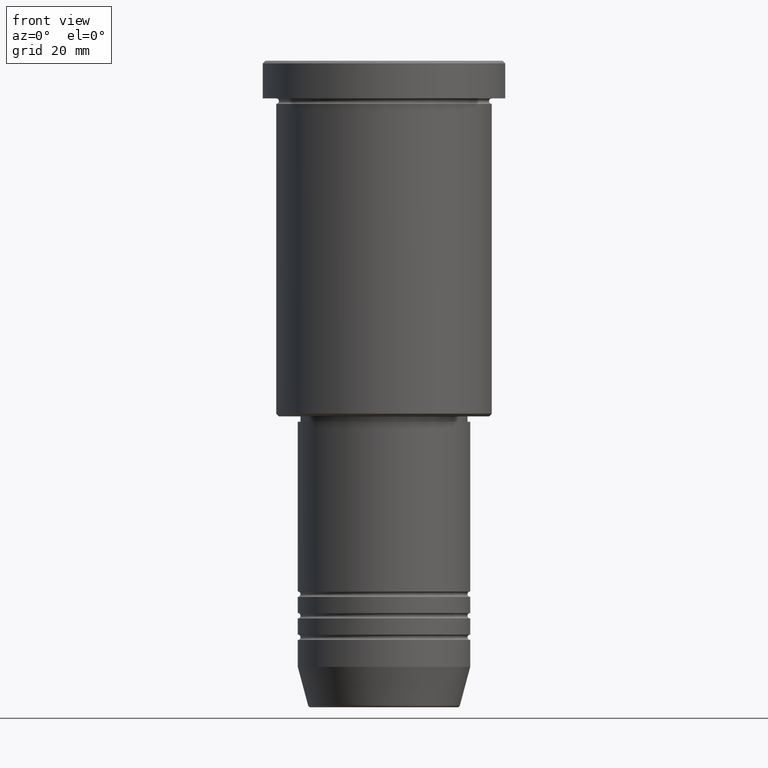
[diagram: clean part render]
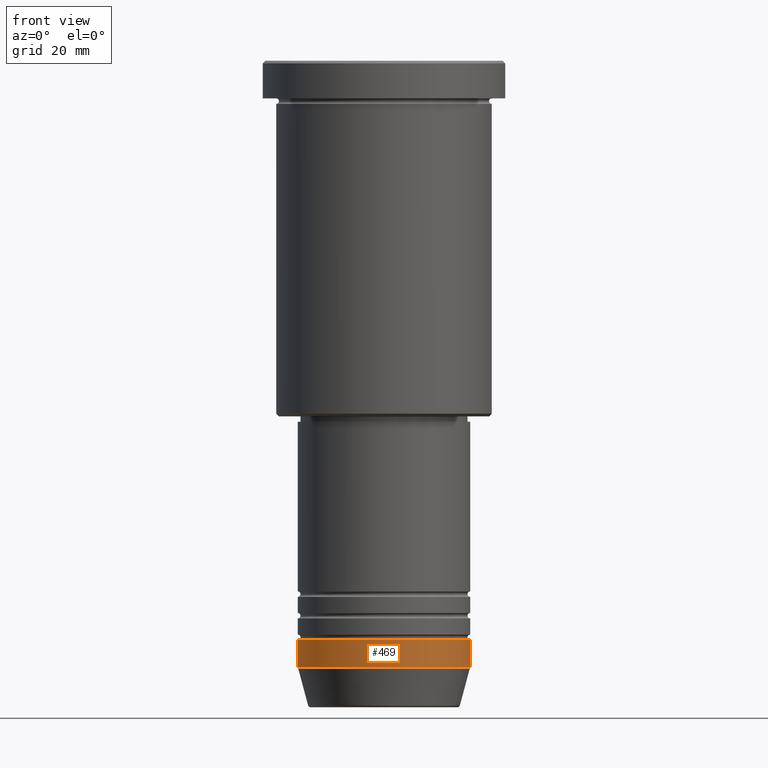
[diagram: same view with one face highlighted and labeled with its STEP entity id]
A machine part, front view. The second image highlights one B-rep face of the part: STEP entity #469.
In plain terms, the highlighted cylindrical surface (partial cylindrical patch) has radius 16 mm, axis along (-0, -0, 1).
Its self-contained STEP definition (entity closure, byte-faithful):
#18 = EDGE_CURVE ( 'NONE', #667, #93, #577, .T. ) ;
#63 = AXIS2_PLACEMENT_3D ( 'NONE', #1150, #901, #324 ) ;
#74 = EDGE_LOOP ( 'NONE', ( #281, #1029, #321, #789 ) ) ;
#93 = VERTEX_POINT ( 'NONE', #1143 ) ;
#111 = CARTESIAN_POINT ( 'NONE',  ( 0.000000000000000000, 0.000000000000000000, -112.4999999999999858 ) ) ;
#120 = DIRECTION ( 'NONE',  ( -0.000000000000000000, -0.000000000000000000, 1.000000000000000000 ) ) ;
#213 = CYLINDRICAL_SURFACE ( 'NONE', #502, 16.00000000000000000 ) ;
#281 = ORIENTED_EDGE ( 'NONE', *, *, #332, .F. ) ;
#321 = ORIENTED_EDGE ( 'NONE', *, *, #358, .T. ) ;
#324 = DIRECTION ( 'NONE',  ( 1.000000000000000000, 0.000000000000000000, 0.000000000000000000 ) ) ;
#332 = EDGE_CURVE ( 'NONE', #771, #667, #357, .T. ) ;
#357 = LINE ( 'NONE', #643, #1019 ) ;
#358 = EDGE_CURVE ( 'NONE', #478, #93, #546, .T. ) ;
#392 = CARTESIAN_POINT ( 'NONE',  ( -16.00000000000000000, 1.959434878635765131E-15, -107.4999999999999858 ) ) ;
#449 = VECTOR ( 'NONE', #740, 1000.000000000000000 ) ;
#464 = DIRECTION ( 'NONE',  ( 1.000000000000000000, 0.000000000000000000, 0.000000000000000000 ) ) ;
#469 = ADVANCED_FACE ( 'NONE', ( #1027 ), #213, .T. ) ;
#472 = CIRCLE ( 'NONE', #596, 16.00000000000000000 ) ;
#478 = VERTEX_POINT ( 'NONE', #586 ) ;
#502 = AXIS2_PLACEMENT_3D ( 'NONE', #942, #120, #464 ) ;
#546 = LINE ( 'NONE', #928, #449 ) ;
#577 = CIRCLE ( 'NONE', #63, 16.00000000000000000 ) ;
#586 = CARTESIAN_POINT ( 'NONE',  ( 16.00000000000000000, 0.000000000000000000, -112.4999999999999858 ) ) ;
#596 = AXIS2_PLACEMENT_3D ( 'NONE', #111, #737, #640 ) ;
#640 = DIRECTION ( 'NONE',  ( 1.000000000000000000, 0.000000000000000000, 0.000000000000000000 ) ) ;
#643 = CARTESIAN_POINT ( 'NONE',  ( -16.00000000000000000, 1.959434878635765131E-15, 0.000000000000000000 ) ) ;
#667 = VERTEX_POINT ( 'NONE', #392 ) ;
#737 = DIRECTION ( 'NONE',  ( -0.000000000000000000, -0.000000000000000000, 1.000000000000000000 ) ) ;
#740 = DIRECTION ( 'NONE',  ( -0.000000000000000000, -0.000000000000000000, 1.000000000000000000 ) ) ;
#771 = VERTEX_POINT ( 'NONE', #805 ) ;
#789 = ORIENTED_EDGE ( 'NONE', *, *, #18, .F. ) ;
#805 = CARTESIAN_POINT ( 'NONE',  ( -16.00000000000000000, 1.959434878635765131E-15, -112.4999999999999858 ) ) ;
#901 = DIRECTION ( 'NONE',  ( -0.000000000000000000, -0.000000000000000000, 1.000000000000000000 ) ) ;
#928 = CARTESIAN_POINT ( 'NONE',  ( 16.00000000000000000, 0.000000000000000000, 0.000000000000000000 ) ) ;
#942 = CARTESIAN_POINT ( 'NONE',  ( 0.000000000000000000, 0.000000000000000000, 0.000000000000000000 ) ) ;
#989 = DIRECTION ( 'NONE',  ( -0.000000000000000000, -0.000000000000000000, 1.000000000000000000 ) ) ;
#1019 = VECTOR ( 'NONE', #989, 1000.000000000000000 ) ;
#1026 = EDGE_CURVE ( 'NONE', #771, #478, #472, .T. ) ;
#1027 = FACE_OUTER_BOUND ( 'NONE', #74, .T. ) ;
#1029 = ORIENTED_EDGE ( 'NONE', *, *, #1026, .T. ) ;
#1143 = CARTESIAN_POINT ( 'NONE',  ( 16.00000000000000000, 0.000000000000000000, -107.4999999999999858 ) ) ;
#1150 = CARTESIAN_POINT ( 'NONE',  ( 0.000000000000000000, 0.000000000000000000, -107.4999999999999858 ) ) ;